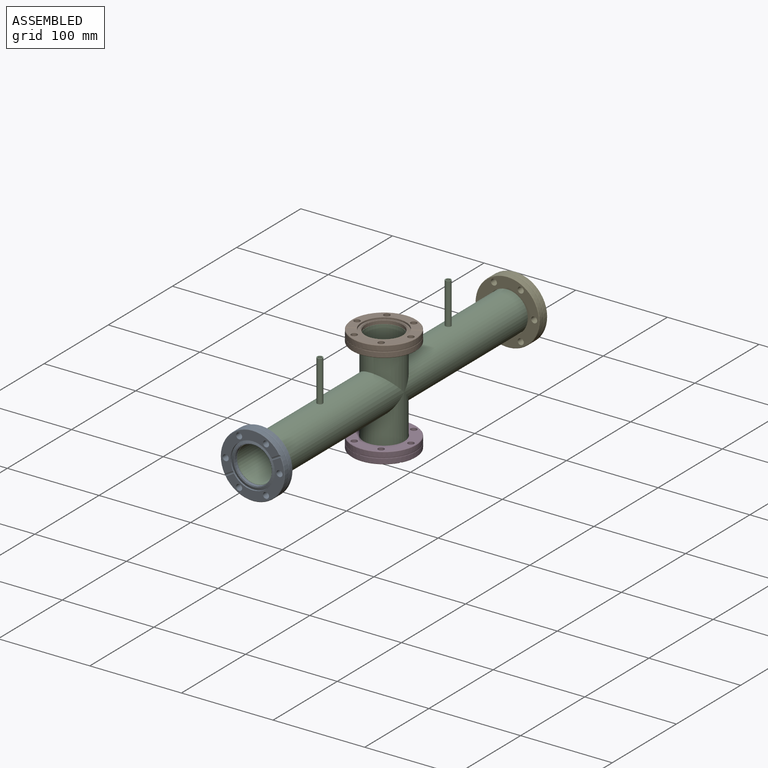
[diagram: assembled view]
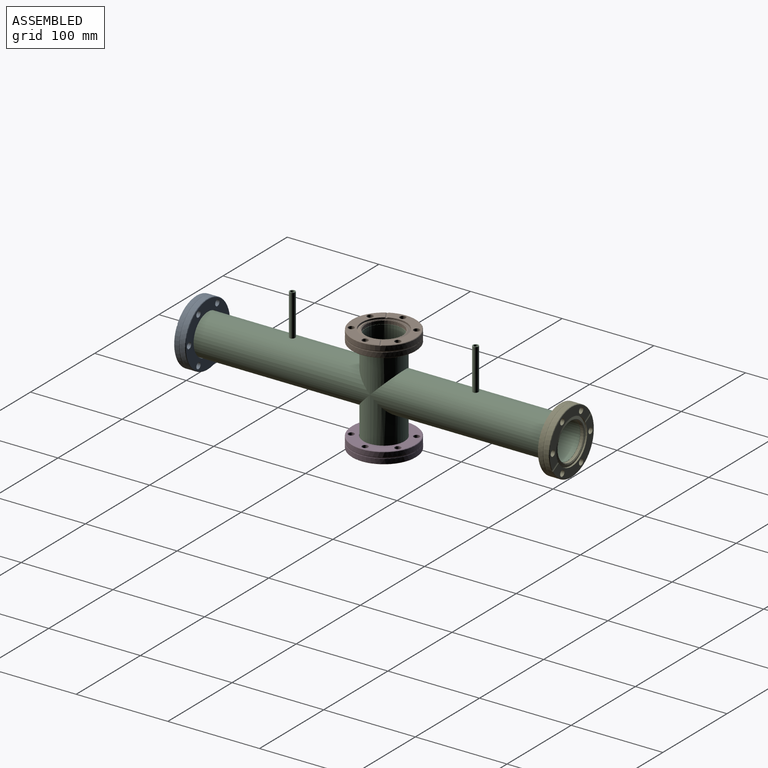
[diagram: assembled view, second angle]
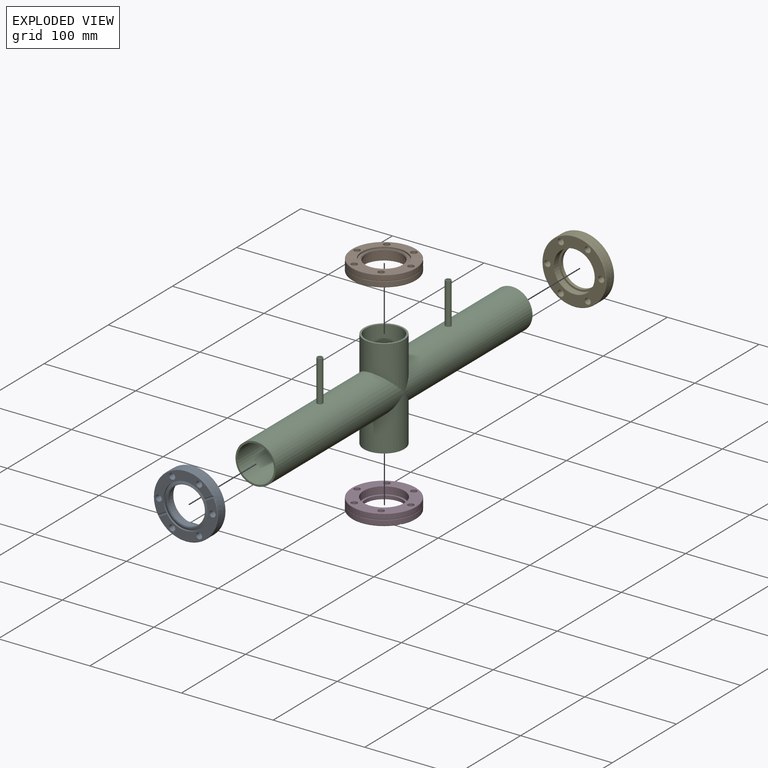
[diagram: exploded view]
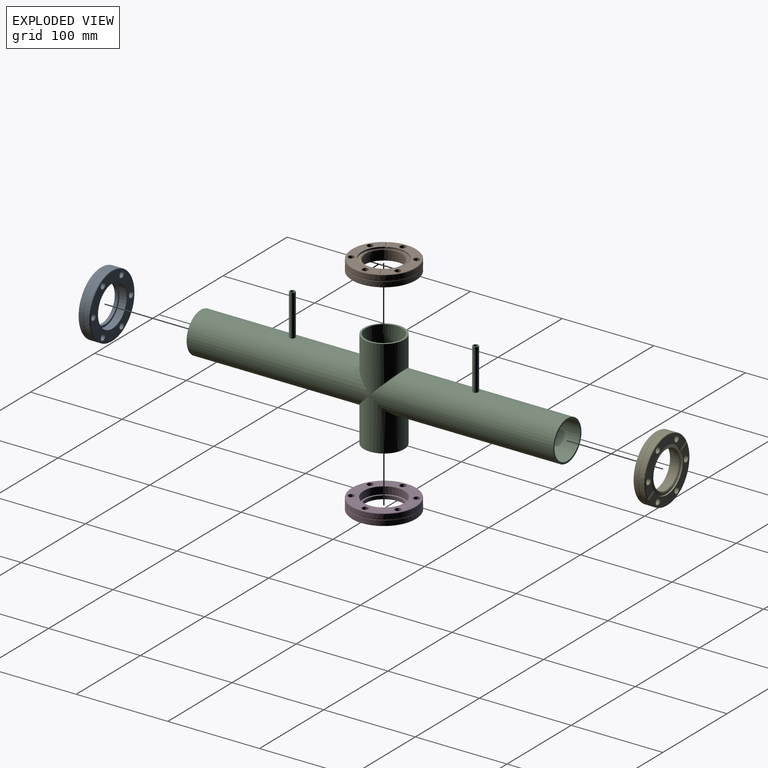
[diagram: exploded view, second angle]
ASSEMBLY  parts=5 mates=4
PART A: 25 faces, bbox 76.2x76.2x12.7 mm
  f0: torus R=36.25mm, axis (0,0,-1), area 342.8mm2, adj f14,f15
  f1: cone r=34.45mm half-angle=45deg, axis (0,0,-1), area 154.2mm2, adj f14,f18
  f2: cylinder r=3.3mm len=12.7mm, axis (0,0,1), area 263.3mm2, adj f17,f18
  f3: cylinder r=3.3mm len=12.7mm, axis (0,0,1), area 263.3mm2, adj f17,f18
  f4: cylinder r=3.3mm len=12.7mm, axis (0,0,1), area 263.3mm2, adj f17,f18
  f5: cylinder r=3.3mm len=12.7mm, axis (0,0,1), area 263.3mm2, adj f18,f19
  f6: cylinder r=3.3mm len=12.7mm, axis (0,0,1), area 263.3mm2, adj f18,f19
  f7: cylinder r=3.3mm len=12.7mm, axis (0,0,1), area 263.3mm2, adj f18,f19
  f8: cylinder r=22.35mm len=44.7mm, axis (0,0,1), area 1109.4mm2, adj f18,f21
  f9: torus R=21.04mm, axis (0,0,-1), area 24.2mm2, adj f10,f12
  f10: cone r=20.94mm half-angle=5deg, axis (0,0,-1), area 62mm2, adj f9,f20
  f11: cylinder r=24.2mm len=48.4mm, axis (0,0,-1), area 271.1mm2, adj f12,f17,f19,f23,f24
  f12: cone r=24.2mm half-angle=70deg, axis (0,0,1), area 473.4mm2, adj f9,f11
  f13: cylinder r=20.25mm len=40.5mm, axis (0,0,1), area 458mm2, adj f20,f21
  f14: cylinder r=34.95mm len=69.9mm, axis (0,0,-1), area 1120.3mm2, adj f0,f1
  f15: cylinder r=34.95mm len=69.9mm, axis (0,0,-1), area 1120.3mm2, adj f0,f16,f22,f23,f24
  f16: cone r=34.95mm half-angle=45deg, axis (0,0,1), area 75.9mm2, adj f15,f17,f23,f24
  f17: plane 63.67x50.63mm, normal (0,0,-1), area 817.1mm2, adj f2,f3,f4,f11,f16,f23,f24
  f18: plane 68.9x68.9mm, normal (0,0,1), area 1953.9mm2, adj f1,f2,f3,f4,f5,f6,f7,f8
  f19: plane 63.67x50.63mm, normal (0,0,-1), area 817.1mm2, adj f5,f6,f7,f11,f22,f23,f24
  f20: plane 41.8x41.8mm, normal (0,0,-1), area 83.7mm2, adj f10,f13
  f21: plane 44.7x44.7mm, normal (0,0,1), area 281mm2, adj f8,f13
  f22: cone r=34.95mm half-angle=45deg, axis (0,0,1), area 75.9mm2, adj f15,f19,f23,f24
  f23: cylinder r=1.5mm len=10.53mm, axis (-0.87,0.5,0), area 29.5mm2, adj f11,f15,f16,f17,f19,f22
  f24: cylinder r=1.5mm len=10.53mm, axis (-0.87,0.5,0), area 29.5mm2, adj f11,f15,f16,f17,f19,f22
PART B: same geometry as A
PART C: 18 faces, bbox 44x400x123 mm
  f0: cylinder r=2.12mm len=47.11mm, axis (0,0,1), area 628.3mm2, adj f5,f11
  f1: cylinder r=20mm len=56mm, axis (0,0,1), area 5437.2mm2, adj f6,f11,f17
  f2: cylinder r=20mm len=52mm, axis (0,0,1), area 4934.5mm2, adj f6,f11,f16
  f3: cylinder r=2.12mm len=47.11mm, axis (0,0,1), area 628.3mm2, adj f6,f14
  f4: cylinder r=3.12mm len=45.22mm, axis (0,0,1), area 885.8mm2, adj f5,f13
  f5: plane 6.25x6.25mm, normal (0,0,1), area 16.5mm2, adj f0,f4
  f6: cylinder r=20mm len=200mm, axis (0,1,0), area 23518.5mm2, adj f1,f2,f3,f8
  f7: cylinder r=22mm len=200mm, axis (0,1,0), area 25679.3mm2, adj f8,f9,f10,f15
  f8: plane 44x44mm, normal (0,1,0), area 263.9mm2, adj f6,f7
  f9: cylinder r=22mm len=56mm, axis (0,0,1), area 5804.9mm2, adj f7,f13,f17
  f10: cylinder r=22mm len=52mm, axis (0,0,1), area 5252mm2, adj f7,f13,f16
  f11: cylinder r=20mm len=200mm, axis (0,1,0), area 23518.5mm2, adj f0,f1,f2,f12
  f12: plane 44x44mm, normal (0,-1,0), area 263.9mm2, adj f11,f13
  f13: cylinder r=22mm len=200mm, axis (0,1,0), area 25679.3mm2, adj f4,f9,f10,f12
  f14: plane 6.25x6.25mm, normal (0,0,1), area 16.5mm2, adj f3,f15
  f15: cylinder r=3.12mm len=45.22mm, axis (0,0,1), area 885.8mm2, adj f7,f14
  f16: plane 44x44mm, normal (0,0,1), area 263.9mm2, adj f2,f10
  f17: plane 44x44mm, normal (0,0,-1), area 263.9mm2, adj f1,f9
PART D: same geometry as A
PART E: same geometry as A
PLACE A rot(axis=(-1,0,0),90deg) t=(-165.83,-395.12,-74.99)mm
PLACE B rot(axis=(1,0,0),180deg) t=(-165.83,-190.32,-18.19)mm
PLACE C t=(-165.83,9.68,-74.99)mm
PLACE D t=(-165.83,-190.32,-135.79)mm
PLACE E rot(axis=(1,0,0),90deg) t=(-165.83,14.48,-74.99)mm
MATE planar D.f0 <-> C.f1  axis (0,0,1) through (-165.83,-190.32,-130.99)mm
MATE planar B.f0 <-> C.f1  axis (0,0,-1) through (-165.83,-190.32,-22.99)mm
MATE planar A.f0 <-> C.f7  axis (0,1,0) through (-165.83,-390.32,-74.99)mm
MATE planar E.f0 <-> C.f7  axis (0,-1,0) through (-165.83,9.68,-74.99)mm
